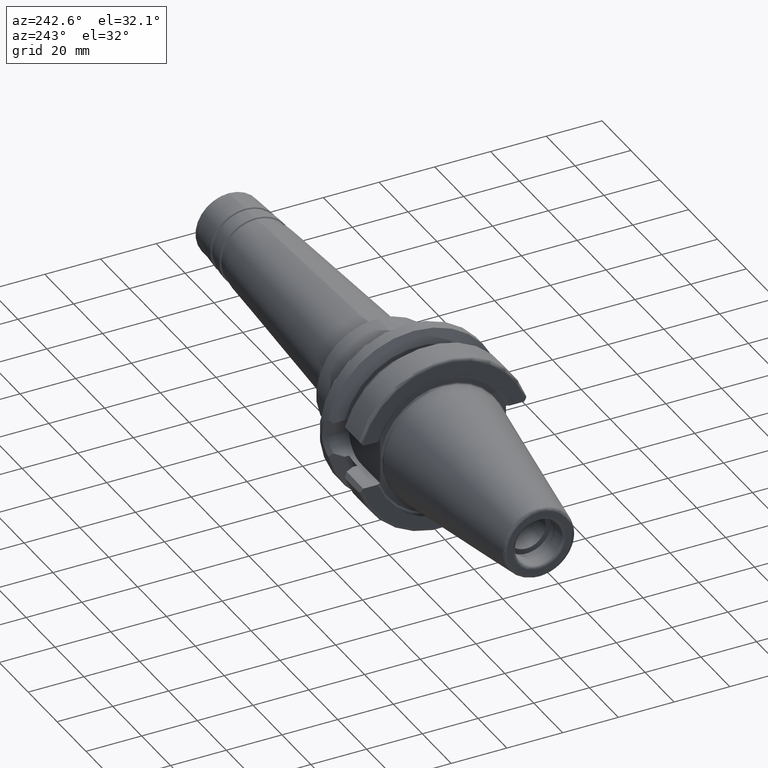
[diagram: clean part render]
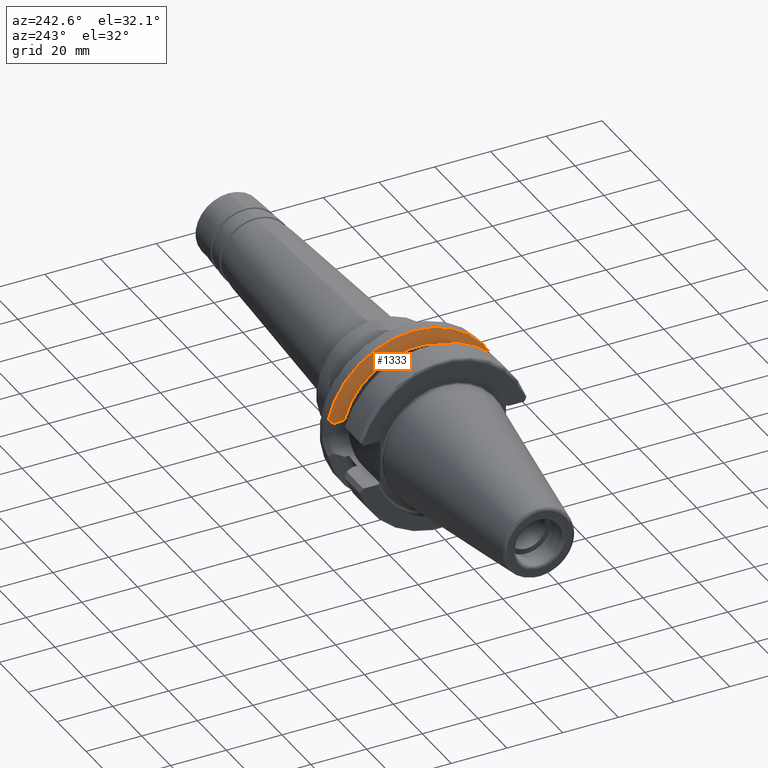
[diagram: same view with one face highlighted and labeled with its STEP entity id]
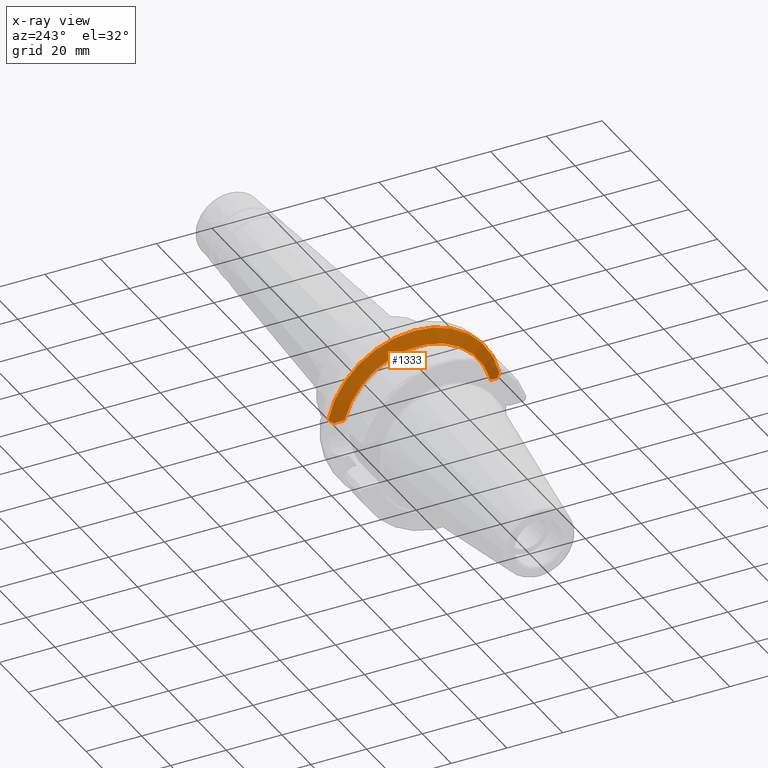
[diagram: x-ray of the same camera — body ghosted, the highlighted face saturated]
A machine part, auxiliary view. The second image highlights one B-rep face of the part: STEP entity #1333.
The next image is the same camera in x-ray: the body ghosted, the highlighted face saturated — about 3% of this face is hidden behind the body in this view.
In plain terms, the highlighted conical surface has half-angle 60.125 deg.
Its self-contained STEP definition (entity closure, byte-faithful):
#30=B_SPLINE_CURVE_WITH_KNOTS('',3,(#2170,#2171,#2172,#2173,#2174,#2175,
#2176,#2177,#2178,#2179,#2180,#2181,#2182),.UNSPECIFIED.,.F.,.F.,(4,3,3,
3,4),(0.,0.0731506810736418,0.104649820621099,0.17112209757583,0.209508940919131),
 .UNSPECIFIED.);
#40=B_SPLINE_CURVE_WITH_KNOTS('',3,(#2376,#2377,#2378,#2379,#2380,#2381,
#2382,#2383,#2384,#2385,#2386,#2387,#2388),.UNSPECIFIED.,.F.,.F.,(4,3,3,
3,4),(0.,0.066453158711785,0.104853023510292,0.177983430078857,0.209498394873819),
 .UNSPECIFIED.);
#42=B_SPLINE_CURVE_WITH_KNOTS('',3,(#2478,#2479,#2480,#2481,#2482,#2483),
 .UNSPECIFIED.,.F.,.F.,(4,2,4),(1.4642102789956,1.54570476603971,1.82831600250635),
 .UNSPECIFIED.);
#47=B_SPLINE_CURVE_WITH_KNOTS('',3,(#2571,#2572,#2573,#2574,#2575,#2576),
 .UNSPECIFIED.,.F.,.F.,(4,2,4),(3.3443816511031,3.62699288756974,3.70848737461385),
 .UNSPECIFIED.);
#257=CONICAL_SURFACE('',#1513,29.2970358274569,1.04937921276159);
#329=FACE_OUTER_BOUND('',#416,.T.);
#416=EDGE_LOOP('',(#1178,#1179,#1180,#1181,#1182,#1183));
#482=CIRCLE('',#1453,31.5000000000001);
#509=CIRCLE('',#1514,27.0940716549138);
#566=VERTEX_POINT('',#2161);
#567=VERTEX_POINT('',#2169);
#571=VERTEX_POINT('',#2199);
#597=VERTEX_POINT('',#2375);
#620=VERTEX_POINT('',#2477);
#636=VERTEX_POINT('',#2569);
#716=EDGE_CURVE('',#566,#567,#30,.T.);
#722=EDGE_CURVE('',#571,#566,#482,.T.);
#756=EDGE_CURVE('',#597,#571,#40,.T.);
#790=EDGE_CURVE('',#620,#567,#42,.T.);
#823=EDGE_CURVE('',#597,#636,#47,.T.);
#824=EDGE_CURVE('',#636,#620,#509,.T.);
#1178=ORIENTED_EDGE('',*,*,#716,.F.);
#1179=ORIENTED_EDGE('',*,*,#722,.F.);
#1180=ORIENTED_EDGE('',*,*,#756,.F.);
#1181=ORIENTED_EDGE('',*,*,#823,.T.);
#1182=ORIENTED_EDGE('',*,*,#824,.T.);
#1183=ORIENTED_EDGE('',*,*,#790,.T.);
#1333=ADVANCED_FACE('',(#329),#257,.T.);
#1453=AXIS2_PLACEMENT_3D('',#2209,#1730,#1731);
#1513=AXIS2_PLACEMENT_3D('',#2577,#1898,#1899);
#1514=AXIS2_PLACEMENT_3D('',#2578,#1900,#1901);
#1730=DIRECTION('center_axis',(1.,0.,0.));
#1731=DIRECTION('ref_axis',(0.,0.,-1.));
#1898=DIRECTION('center_axis',(1.,0.,0.));
#1899=DIRECTION('ref_axis',(0.,1.,0.));
#1900=DIRECTION('center_axis',(1.,0.,0.));
#1901=DIRECTION('ref_axis',(0.,0.,-1.));
#2161=CARTESIAN_POINT('',(21.6309636926619,-30.7261128229805,6.93945176433102));
#2169=CARTESIAN_POINT('',(20.7197593187301,-29.382324732277,5.61358863864523));
#2170=CARTESIAN_POINT('Ctrl Pts',(21.6309636926619,-30.7261128229805,6.93945176433103));
#2171=CARTESIAN_POINT('Ctrl Pts',(21.5238339856428,-30.5695121491318,6.78630067423762));
#2172=CARTESIAN_POINT('Ctrl Pts',(21.4169592784421,-30.4128404199052,6.63265120293111));
#2173=CARTESIAN_POINT('Ctrl Pts',(21.3105305033278,-30.2563346083301,6.47868470749077));
#2174=CARTESIAN_POINT('Ctrl Pts',(21.2647016089144,-30.1889422296613,6.41238577418863));
#2175=CARTESIAN_POINT('Ctrl Pts',(21.2189548618225,-30.1215804376254,6.34602839655281));
#2176=CARTESIAN_POINT('Ctrl Pts',(21.1733030871153,-30.0542673557316,6.27962857959426));
#2177=CARTESIAN_POINT('Ctrl Pts',(21.0769646646882,-29.9122173224101,6.13950579890808));
#2178=CARTESIAN_POINT('Ctrl Pts',(20.9808489178349,-29.7700885299286,5.99890233767342));
#2179=CARTESIAN_POINT('Ctrl Pts',(20.8851377800934,-29.6281082801534,5.85799018832492));
#2180=CARTESIAN_POINT('Ctrl Pts',(20.8298658890284,-29.5461166009804,5.77661532274159));
#2181=CARTESIAN_POINT('Ctrl Pts',(20.7747281328589,-29.4641741974733,5.69513801393111));
#2182=CARTESIAN_POINT('Ctrl Pts',(20.7197531070639,-29.3823227488288,5.6135954544323));
#2199=CARTESIAN_POINT('',(21.6309636926619,30.7261128229805,6.93945176433102));
#2209=CARTESIAN_POINT('Origin',(21.6309636926619,0.,0.));
#2375=CARTESIAN_POINT('',(20.7197593187301,29.382324732277,5.61358863864523));
#2376=CARTESIAN_POINT('Ctrl Pts',(20.7197515894297,29.3823222023351,5.61359762229939));
#2377=CARTESIAN_POINT('Ctrl Pts',(20.8149264355491,29.5240261146061,5.75476612102477));
#2378=CARTESIAN_POINT('Ctrl Pts',(20.9105912690111,29.6660033681186,5.89573769514358));
#2379=CARTESIAN_POINT('Ctrl Pts',(21.0065888437666,29.8080348169476,6.03632495637328));
#2380=CARTESIAN_POINT('Ctrl Pts',(21.0620609080454,29.8901074909618,6.11756310860358));
#2381=CARTESIAN_POINT('Ctrl Pts',(21.1176433000706,29.972198010001,6.19867342831795));
#2382=CARTESIAN_POINT('Ctrl Pts',(21.1732991947734,30.0542619764308,6.27962385104281));
#2383=CARTESIAN_POINT('Ctrl Pts',(21.2792927504514,30.2105482358,6.43378942836527));
#2384=CARTESIAN_POINT('Ctrl Pts',(21.3858010607312,30.3670979926274,6.58772453026809));
#2385=CARTESIAN_POINT('Ctrl Pts',(21.4926516371797,30.5236804762112,6.74123636577551));
#2386=CARTESIAN_POINT('Ctrl Pts',(21.538698039943,30.5911584472658,6.80739106555952));
#2387=CARTESIAN_POINT('Ctrl Pts',(21.5848074729308,30.6586423209757,6.87346749569907));
#2388=CARTESIAN_POINT('Ctrl Pts',(21.6309636926619,30.7261128229805,6.93945176433103));
#2477=CARTESIAN_POINT('',(19.1,-26.201311395455,6.89782574439221));
#2478=CARTESIAN_POINT('Ctrl Pts',(19.1,-26.201311395455,6.89782574439221));
#2479=CARTESIAN_POINT('Ctrl Pts',(19.2210929544554,-26.438473693351,6.82497151762395));
#2480=CARTESIAN_POINT('Ctrl Pts',(19.3406963650697,-26.6728819297428,6.74867108656041));
#2481=CARTESIAN_POINT('Ctrl Pts',(19.867744184216,-27.7064624084632,6.39234949299032));
#2482=CARTESIAN_POINT('Ctrl Pts',(20.3012218741369,-28.558364647748,6.04376984297407));
#2483=CARTESIAN_POINT('Ctrl Pts',(20.7197593187301,-29.382324732277,5.61358863864523));
#2569=CARTESIAN_POINT('',(19.1,26.201311395455,6.89782574439221));
#2571=CARTESIAN_POINT('Ctrl Pts',(20.7197593187301,29.382324732277,5.61358863864523));
#2572=CARTESIAN_POINT('Ctrl Pts',(20.3012218741369,28.558364647748,6.04376984297407));
#2573=CARTESIAN_POINT('Ctrl Pts',(19.867744184216,27.7064624084632,6.39234949299032));
#2574=CARTESIAN_POINT('Ctrl Pts',(19.3406963650697,26.6728819297428,6.74867108656041));
#2575=CARTESIAN_POINT('Ctrl Pts',(19.2210929544554,26.438473693351,6.82497151762395));
#2576=CARTESIAN_POINT('Ctrl Pts',(19.1,26.201311395455,6.89782574439221));
#2577=CARTESIAN_POINT('Origin',(20.3654818463309,0.,0.));
#2578=CARTESIAN_POINT('Origin',(19.1,0.,0.));